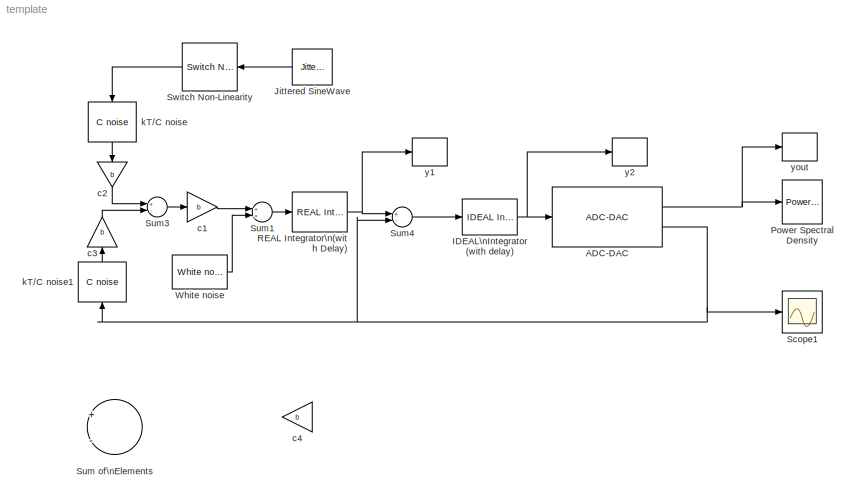
MODEL template
KIND model
BLOCK [Reference]  ADC-DAC  REF=SDtoolbox/ADC-DAC
  CST = Cs
  LF = off
  MM = off
  NF = retA.log
  Ports = [1, 2]
  SID = 14
  SourceBlock = SDtoolbox/ADC-DAC
  VVG = off
  argo = argo(:,3)
  k = NCOMPARATORI
  match = match
BLOCK [Reference] IDEAL\nIntegrator (with delay)  REF=SDtoolbox/IDEAL Integrator\n(with Delay)
  Amax = Amax
  Ports = [1, 1]
  SID = 12
  SourceBlock = SDtoolbox/IDEAL Integrator\n(with Delay)
  Ts = Ts
BLOCK [Reference] Jittered SineWave  REF=SDtoolbox/Jittered SineWave
  Ampl = Ampl
  Bias = 0
  Freq = finrad
  Phase = 0
  Ports = [0, 1]
  SID = 1
  SampJ = delta*0
  SourceBlock = SDtoolbox/Jittered SineWave
  Ts = Ts
  seed = floor(100*sum(clock))
BLOCK [Reference] Power Spectral Density  REF=SDtoolbox/Power Spectral Density
  Fin = Fin
  Fs = Fs
  N = N
  Ntransient = Ntransient
  Ports = [1]
  SID = 16
  SN = 1
  Scale_type = logarithmic
  SourceBlock = SDtoolbox/Power Spectral Density
  VW = off
  fBH = Fs/(2*R)
  fBL = 1
  savename = savemat
BLOCK [Reference] REAL Integrator\n(with Delay)  REF=SDtoolbox/REAL Integrator\n(with Delay)
  Amax = Amax
  GBW = GBW
  Ports = [1, 1]
  SID = 9
  SourceBlock = SDtoolbox/REAL Integrator\n(with Delay)
  Ts = Ts
  alfa = alfa
  sr = sr
BLOCK [Scope] Scope1
  NumInputPorts = 1
  Ports = [1]
  SID = 17
  ScopeSpecificationString = C++SS(StrPVP('Location','[-21, 147, 1379, 1110]'),StrPVP('Open','off'),StrPVP('ZoomMode','xonly'),MxPVP('AxesTitles',53,'struct(''axes1'',''%<SignalLabel>'')'),StrPVP('YMin','-1'),StrPVP('YMax','1'),StrPVP('SaveName','ScopeData1'),StrPVP('DataFormat','StructureWithTime'),StrPVP('BlockParamSampleTime','0'),StrPVP('LimitDataPoints','on'),StrPVP('Decimation','1'),StrPVP('BlockParamSampleInput','off')...<+1ch>
BLOCK [Sum] Sum of\nElements
  InputSameDT = off
  Inputs = +-
  OutDataTypeStr = Inherit: Inherit via internal rule
  Ports = [2, 1]
  SID = 20
  SaturateOnIntegerOverflow = off
BLOCK [Sum] Sum1
  Ports = [2, 1]
  SID = 8
BLOCK [Sum] Sum3
  Inputs = +-
  Ports = [2, 1]
  SID = 5
BLOCK [Sum] Sum4
  Inputs = +-
  Ports = [2, 1]
  SID = 11
BLOCK [Reference] Switch Non-Linearity  REF=SDtoolbox/Switch Non-Linearity
  BS = 0
  CS = Cs
  KPN = 175e-6
  KPP = 60e-6
  Ports = [1, 1]
  SID = 2
  Size = 20
  SourceBlock = SDtoolbox/Switch Non-Linearity
  Ts = Ts
  VTN = 0.5
  VTP = -0.5
  VsupplyN = -2
  VsupplyP = 2
BLOCK [Reference] White noise  REF=SDtoolbox/White noise
  Ports = [0, 1]
  SID = 7
  SourceBlock = SDtoolbox/White noise
  Ts = Ts
  noise = noise1
  seed = floor(sum(clock)^1/111)
BLOCK [Gain] c1
  Gain = b
  SID = 6
BLOCK [Gain] c2
  Gain = b
  SID = 4
BLOCK [Gain] c3
  Gain = b
  SID = 19
BLOCK [Gain] c4
  Gain = b
  SID = 21
BLOCK [Reference] kT//C noise  REF=SDtoolbox/kT//C noise
  C = Cs
  Ports = [1, 1]
  SID = 3
  SourceBlock = SDtoolbox/kT//C noise
  Temp = Temp
  Ts = Ts
  k = k
  seed = floor(sum(clock))
BLOCK [Reference] kT//C noise1  REF=SDtoolbox/kT//C noise
  C = Cs
  Ports = [1, 1]
  SID = 18
  SourceBlock = SDtoolbox/kT//C noise
  Temp = Temp
  Ts = Ts
  k = k
  seed = floor(sum(clock))
BLOCK [ToWorkspace] y1
  MaxDataPoints = inf
  Ports = [1]
  SID = 10
  SampleTime = -1
  VariableName = y1
BLOCK [ToWorkspace] y2
  MaxDataPoints = inf
  Ports = [1]
  SID = 13
  SampleTime = -1
  VariableName = y2
BLOCK [ToWorkspace] yout
  MaxDataPoints = inf
  Ports = [1]
  SID = 15
  SampleTime = -1
  VariableName = yout
NET  ADC-DAC:1 -> Power Spectral Density:1, yout:1
NET  ADC-DAC:2 -> Scope1:1, Sum4:2, kT//C noise1:1
NET IDEAL\nIntegrator (with delay):1 ->  ADC-DAC:1, y2:1
LINE Jittered SineWave:1 -> Switch Non-Linearity:1
NET REAL Integrator\n(with Delay):1 -> Sum4:1, y1:1
LINE Sum1:1 -> REAL Integrator\n(with Delay):1
LINE Sum3:1 -> c1:1
LINE Sum4:1 -> IDEAL\nIntegrator (with delay):1
LINE Switch Non-Linearity:1 -> kT//C noise:1
LINE White noise:1 -> Sum1:2
LINE c1:1 -> Sum1:1
LINE c2:1 -> Sum3:1
LINE c3:1 -> Sum3:2
LINE kT//C noise1:1 -> c3:1
LINE kT//C noise:1 -> c2:1
note: NET lines group one-source signal fan-out (src -> all destinations, sorted); 1:1 wires keep LINE
